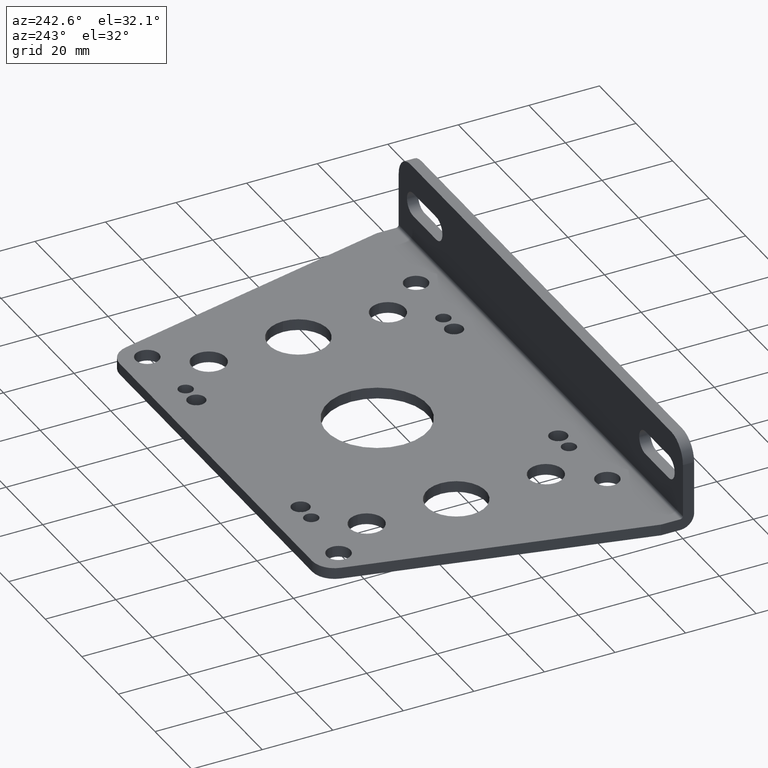
[diagram: clean part render]
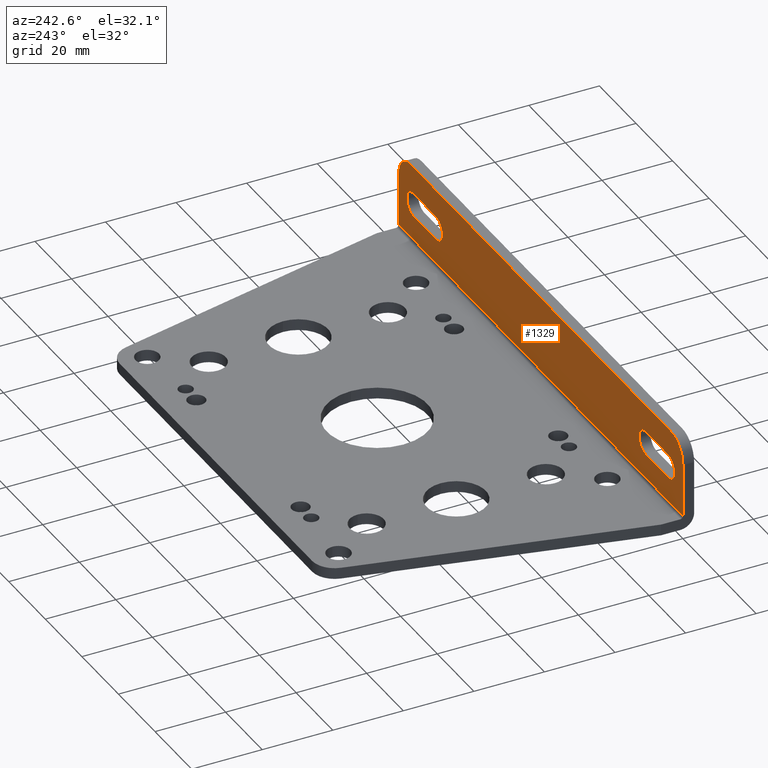
[diagram: same view with one face highlighted and labeled with its STEP entity id]
A machine part, auxiliary view. The second image highlights one B-rep face of the part: STEP entity #1329.
In plain terms, the highlighted planar face has unit normal (-0, 1, 0).
Its self-contained STEP definition (entity closure, byte-faithful):
#12 = ORIENTED_EDGE ( 'NONE', *, *, #1998, .F. ) ;
#41 = AXIS2_PLACEMENT_3D ( 'NONE', #251, #1497, #431 ) ;
#48 = CIRCLE ( 'NONE', #41, 0.2500000000000000600 ) ;
#53 = EDGE_CURVE ( 'NONE', #2166, #596, #761, .T. ) ;
#64 = CARTESIAN_POINT ( 'NONE',  ( 0.8100000000000000500, 0.0000000000000000000, 0.4369999999999999400 ) ) ;
#95 = DIRECTION ( 'NONE',  ( 1.000000000000000000, 0.0000000000000000000, 1.365923996832131400E-016 ) ) ;
#105 = CARTESIAN_POINT ( 'NONE',  ( 5.309999999999999600, 0.0000000000000000000, 0.4369999999999999400 ) ) ;
#106 = EDGE_CURVE ( 'NONE', #2276, #767, #2269, .T. ) ;
#125 = DIRECTION ( 'NONE',  ( -1.000000000000000000, 0.0000000000000000000, 0.0000000000000000000 ) ) ;
#152 = CARTESIAN_POINT ( 'NONE',  ( 0.8100000000000000500, 0.0000000000000000000, 0.5689999999999999500 ) ) ;
#188 = VERTEX_POINT ( 'NONE', #379 ) ;
#192 = FACE_BOUND ( 'NONE', #1782, .T. ) ;
#196 = DIRECTION ( 'NONE',  ( 0.0000000000000000000, 0.0000000000000000000, 1.000000000000000000 ) ) ;
#241 = FACE_BOUND ( 'NONE', #963, .T. ) ;
#243 = DIRECTION ( 'NONE',  ( 0.0000000000000000000, 0.0000000000000000000, 1.000000000000000000 ) ) ;
#251 = CARTESIAN_POINT ( 'NONE',  ( 0.2500000000000000000, 0.0000000000000000000, 0.6250000000000000000 ) ) ;
#257 = LINE ( 'NONE', #1110, #2090 ) ;
#258 = VERTEX_POINT ( 'NONE', #1044 ) ;
#281 = CARTESIAN_POINT ( 'NONE',  ( 6.120000000000000100, 0.0000000000000000000, 0.02900000000000001900 ) ) ;
#283 = EDGE_CURVE ( 'NONE', #519, #643, #2187, .T. ) ;
#286 = DIRECTION ( 'NONE',  ( 1.000000000000000000, 0.0000000000000000000, -0.0000000000000000000 ) ) ;
#291 = CARTESIAN_POINT ( 'NONE',  ( 6.120000000000000100, 0.0000000000000000000, 0.3049999999999999400 ) ) ;
#297 = EDGE_CURVE ( 'NONE', #370, #2166, #310, .T. ) ;
#310 = LINE ( 'NONE', #1006, #728 ) ;
#337 = DIRECTION ( 'NONE',  ( -0.0000000000000000000, 1.000000000000000000, 0.0000000000000000000 ) ) ;
#338 = EDGE_CURVE ( 'NONE', #188, #408, #1607, .T. ) ;
#339 = VERTEX_POINT ( 'NONE', #813 ) ;
#366 = CARTESIAN_POINT ( 'NONE',  ( 0.3100000000000000000, 0.0000000000000000000, 0.4369999999999999400 ) ) ;
#370 = VERTEX_POINT ( 'NONE', #2212 ) ;
#371 = CARTESIAN_POINT ( 'NONE',  ( 0.3100000000000000000, 0.0000000000000000000, 0.3049999999999999400 ) ) ;
#379 = CARTESIAN_POINT ( 'NONE',  ( 0.3100000000000000000, 0.0000000000000000000, 0.5689999999999999500 ) ) ;
#386 = DIRECTION ( 'NONE',  ( 0.0000000000000000000, 0.0000000000000000000, -1.000000000000000000 ) ) ;
#391 = AXIS2_PLACEMENT_3D ( 'NONE', #664, #844, #2079 ) ;
#408 = VERTEX_POINT ( 'NONE', #152 ) ;
#410 = CIRCLE ( 'NONE', #1585, 0.1319999999999999800 ) ;
#411 = LINE ( 'NONE', #1465, #1765 ) ;
#431 = DIRECTION ( 'NONE',  ( 0.0000000000000000000, 0.0000000000000000000, 1.000000000000000000 ) ) ;
#458 = ORIENTED_EDGE ( 'NONE', *, *, #867, .F. ) ;
#496 = EDGE_CURVE ( 'NONE', #1865, #519, #2267, .T. ) ;
#498 = CARTESIAN_POINT ( 'NONE',  ( 6.120000000000000100, 0.0000000000000000000, 0.3049999999999999400 ) ) ;
#519 = VERTEX_POINT ( 'NONE', #1383 ) ;
#520 = CARTESIAN_POINT ( 'NONE',  ( 5.870000000000000100, 0.0000000000000000000, 0.8750000000000000000 ) ) ;
#563 = CIRCLE ( 'NONE', #651, 0.1320000000000000600 ) ;
#596 = VERTEX_POINT ( 'NONE', #2142 ) ;
#626 = ORIENTED_EDGE ( 'NONE', *, *, #790, .T. ) ;
#638 = DIRECTION ( 'NONE',  ( -0.0000000000000000000, 1.000000000000000000, 0.0000000000000000000 ) ) ;
#643 = VERTEX_POINT ( 'NONE', #1104 ) ;
#651 = AXIS2_PLACEMENT_3D ( 'NONE', #64, #1311, #243 ) ;
#652 = DIRECTION ( 'NONE',  ( -1.000000000000000000, -0.0000000000000000000, -0.0000000000000000000 ) ) ;
#656 = CARTESIAN_POINT ( 'NONE',  ( 6.120000000000000100, 0.0000000000000000000, 0.5689999999999999500 ) ) ;
#664 = CARTESIAN_POINT ( 'NONE',  ( 6.120000000000000100, 0.0000000000000000000, 0.8750000000000000000 ) ) ;
#684 = AXIS2_PLACEMENT_3D ( 'NONE', #1408, #337, #1580 ) ;
#722 = VECTOR ( 'NONE', #286, 39.37007874015748100 ) ;
#728 = VECTOR ( 'NONE', #1175, 39.37007874015748100 ) ;
#761 = LINE ( 'NONE', #281, #1692 ) ;
#767 = VERTEX_POINT ( 'NONE', #371 ) ;
#790 = EDGE_CURVE ( 'NONE', #339, #258, #48, .T. ) ;
#813 = CARTESIAN_POINT ( 'NONE',  ( 0.0000000000000000000, 0.0000000000000000000, 0.6250000000000000000 ) ) ;
#832 = EDGE_LOOP ( 'NONE', ( #2271, #626, #458, #926, #1461, #1315 ) ) ;
#844 = DIRECTION ( 'NONE',  ( -0.0000000000000000000, 1.000000000000000000, 0.0000000000000000000 ) ) ;
#867 = EDGE_CURVE ( 'NONE', #967, #258, #411, .T. ) ;
#870 = EDGE_CURVE ( 'NONE', #767, #188, #891, .T. ) ;
#891 = CIRCLE ( 'NONE', #1405, 0.1319999999999999800 ) ;
#906 = VERTEX_POINT ( 'NONE', #1600 ) ;
#926 = ORIENTED_EDGE ( 'NONE', *, *, #1602, .T. ) ;
#963 = EDGE_LOOP ( 'NONE', ( #1724, #1721, #1678, #1252 ) ) ;
#967 = VERTEX_POINT ( 'NONE', #520 ) ;
#1006 = CARTESIAN_POINT ( 'NONE',  ( 6.120000000000000100, 0.0000000000000000000, 0.8750000000000000000 ) ) ;
#1007 = CARTESIAN_POINT ( 'NONE',  ( 6.120000000000000100, 0.0000000000000000000, 0.02900000000000001900 ) ) ;
#1026 = PLANE ( 'NONE',  #391 ) ;
#1044 = CARTESIAN_POINT ( 'NONE',  ( 0.2500000000000020000, 0.0000000000000000000, 0.8750000000000000000 ) ) ;
#1104 = CARTESIAN_POINT ( 'NONE',  ( 5.309999999999999600, 0.0000000000000000000, 0.5689999999999999500 ) ) ;
#1110 = CARTESIAN_POINT ( 'NONE',  ( 0.0000000000000000000, 0.0000000000000000000, 0.8750000000000000000 ) ) ;
#1145 = FACE_OUTER_BOUND ( 'NONE', #832, .T. ) ;
#1149 = VECTOR ( 'NONE', #95, 39.37007874015748100 ) ;
#1175 = DIRECTION ( 'NONE',  ( 0.0000000000000000000, 0.0000000000000000000, -1.000000000000000000 ) ) ;
#1211 = DIRECTION ( 'NONE',  ( -1.000000000000000000, 0.0000000000000000000, 0.0000000000000000000 ) ) ;
#1246 = EDGE_CURVE ( 'NONE', #906, #1865, #410, .T. ) ;
#1252 = ORIENTED_EDGE ( 'NONE', *, *, #1306, .F. ) ;
#1295 = ORIENTED_EDGE ( 'NONE', *, *, #870, .F. ) ;
#1306 = EDGE_CURVE ( 'NONE', #643, #906, #1706, .T. ) ;
#1311 = DIRECTION ( 'NONE',  ( -0.0000000000000000000, 1.000000000000000000, 0.0000000000000000000 ) ) ;
#1315 = ORIENTED_EDGE ( 'NONE', *, *, #53, .T. ) ;
#1329 = ADVANCED_FACE ( 'NONE', ( #241, #192, #1145 ), #1026, .T. ) ;
#1333 = VECTOR ( 'NONE', #125, 39.37007874015748100 ) ;
#1341 = DIRECTION ( 'NONE',  ( -0.0000000000000000000, 1.000000000000000000, 0.0000000000000000000 ) ) ;
#1344 = DIRECTION ( 'NONE',  ( -1.000000000000000000, -0.0000000000000000000, -0.0000000000000000000 ) ) ;
#1383 = CARTESIAN_POINT ( 'NONE',  ( 5.309999999999999600, 0.0000000000000000000, 0.3049999999999999400 ) ) ;
#1405 = AXIS2_PLACEMENT_3D ( 'NONE', #366, #1439, #196 ) ;
#1408 = CARTESIAN_POINT ( 'NONE',  ( 5.870000000000000100, 0.0000000000000000000, 0.6250000000000000000 ) ) ;
#1435 = ORIENTED_EDGE ( 'NONE', *, *, #338, .F. ) ;
#1439 = DIRECTION ( 'NONE',  ( -0.0000000000000000000, 1.000000000000000000, 0.0000000000000000000 ) ) ;
#1461 = ORIENTED_EDGE ( 'NONE', *, *, #297, .T. ) ;
#1465 = CARTESIAN_POINT ( 'NONE',  ( 6.120000000000000100, 0.0000000000000000000, 0.8750000000000000000 ) ) ;
#1497 = DIRECTION ( 'NONE',  ( -0.0000000000000000000, 1.000000000000000000, 0.0000000000000000000 ) ) ;
#1580 = DIRECTION ( 'NONE',  ( 0.0000000000000000000, 0.0000000000000000000, 1.000000000000000000 ) ) ;
#1585 = AXIS2_PLACEMENT_3D ( 'NONE', #1690, #638, #1867 ) ;
#1600 = CARTESIAN_POINT ( 'NONE',  ( 5.810000000000000500, 0.0000000000000000000, 0.5689999999999999500 ) ) ;
#1602 = EDGE_CURVE ( 'NONE', #967, #370, #1943, .T. ) ;
#1607 = LINE ( 'NONE', #1862, #1149 ) ;
#1678 = ORIENTED_EDGE ( 'NONE', *, *, #1246, .F. ) ;
#1690 = CARTESIAN_POINT ( 'NONE',  ( 5.810000000000000500, 0.0000000000000000000, 0.4369999999999999400 ) ) ;
#1692 = VECTOR ( 'NONE', #1344, 39.37007874015748100 ) ;
#1706 = LINE ( 'NONE', #656, #722 ) ;
#1719 = AXIS2_PLACEMENT_3D ( 'NONE', #105, #1341, #2223 ) ;
#1721 = ORIENTED_EDGE ( 'NONE', *, *, #496, .F. ) ;
#1724 = ORIENTED_EDGE ( 'NONE', *, *, #283, .F. ) ;
#1765 = VECTOR ( 'NONE', #652, 39.37007874015748100 ) ;
#1782 = EDGE_LOOP ( 'NONE', ( #1295, #2180, #12, #1435 ) ) ;
#1832 = CARTESIAN_POINT ( 'NONE',  ( 5.810000000000000500, 0.0000000000000000000, 0.3049999999999999400 ) ) ;
#1862 = CARTESIAN_POINT ( 'NONE',  ( 6.120000000000000100, 0.0000000000000000000, 0.5690000000000007300 ) ) ;
#1865 = VERTEX_POINT ( 'NONE', #1832 ) ;
#1867 = DIRECTION ( 'NONE',  ( 0.0000000000000000000, 0.0000000000000000000, 1.000000000000000000 ) ) ;
#1895 = EDGE_CURVE ( 'NONE', #339, #596, #257, .T. ) ;
#1943 = CIRCLE ( 'NONE', #684, 0.2500000000000000600 ) ;
#1998 = EDGE_CURVE ( 'NONE', #408, #2276, #563, .T. ) ;
#2079 = DIRECTION ( 'NONE',  ( 0.0000000000000000000, -0.0000000000000000000, 1.000000000000000000 ) ) ;
#2090 = VECTOR ( 'NONE', #386, 39.37007874015748100 ) ;
#2142 = CARTESIAN_POINT ( 'NONE',  ( 0.0000000000000000000, 0.0000000000000000000, 0.02900000000000001900 ) ) ;
#2166 = VERTEX_POINT ( 'NONE', #1007 ) ;
#2180 = ORIENTED_EDGE ( 'NONE', *, *, #106, .F. ) ;
#2187 = CIRCLE ( 'NONE', #1719, 0.1319999999999999800 ) ;
#2211 = VECTOR ( 'NONE', #1211, 39.37007874015748100 ) ;
#2212 = CARTESIAN_POINT ( 'NONE',  ( 6.120000000000000100, 0.0000000000000000000, 0.6250000000000000000 ) ) ;
#2220 = CARTESIAN_POINT ( 'NONE',  ( 0.8100000000000003900, 0.0000000000000000000, 0.3049999999999999400 ) ) ;
#2223 = DIRECTION ( 'NONE',  ( 0.0000000000000000000, 0.0000000000000000000, 1.000000000000000000 ) ) ;
#2267 = LINE ( 'NONE', #498, #2211 ) ;
#2269 = LINE ( 'NONE', #291, #1333 ) ;
#2271 = ORIENTED_EDGE ( 'NONE', *, *, #1895, .F. ) ;
#2276 = VERTEX_POINT ( 'NONE', #2220 ) ;